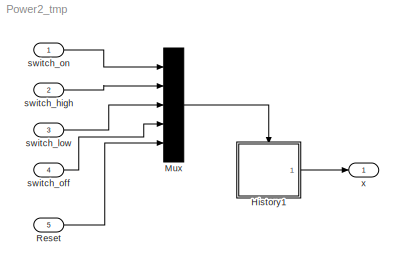
MODEL Power2_tmp
KIND model
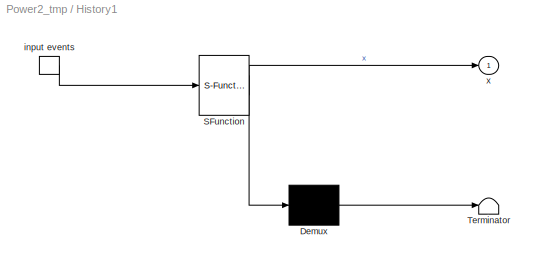
BLOCK [SubSystem] History1
  ErrorFcn = Stateflow.Translate.translate
  PermitHierarchicalResolution = ParametersOnly
  Ports = [0, 1, 0, 1]
  RequestExecContextInheritance = off
  SFBlockType = Chart
  SID = 1
  TreatAsAtomicUnit = on
  Variant = off
BLOCK [Demux] History1/ Demux 
  Outputs = 1
  Ports = [1, 1]
  SID = 1::10
BLOCK [S-Function] History1/ SFunction 
  EnableBusSupport = off
  FunctionName = sf_sfun
  PortCounts = [1 2]
  Ports = [1, 2]
  SFunctionDeploymentMode = off
  SID = 1::9
  Tag = Stateflow S-Function Power2_tmp 1
BLOCK [Terminator] History1/ Terminator 
  SID = 1::11
BLOCK [TriggerPort] History1/input events
  Ports = [0, 1]
  SID = 1::1
  ShowOutputPort = on
  TriggerType = either
BLOCK [Outport] History1/x
  IconDisplay = Port number
  SID = 1::5
BLOCK [Mux] Mux
  DisplayOption = bar
  Inputs = 5
  Ports = [5, 1]
  SID = 4
BLOCK [Inport] Reset
  IconDisplay = Port number
  Port = 5
  SID = 8
BLOCK [Inport] switch_high
  IconDisplay = Port number
  Port = 2
  SID = 6
BLOCK [Inport] switch_low
  IconDisplay = Port number
  Port = 3
  SID = 7
BLOCK [Inport] switch_off
  IconDisplay = Port number
  Port = 4
  SID = 3
BLOCK [Inport] switch_on
  IconDisplay = Port number
  SID = 2
BLOCK [Outport] x
  IconDisplay = Port number
  SID = 5
LINE History1/ Demux :1 -> History1/ Terminator :1
LINE History1/ SFunction :1 -> History1/ Demux :1
LINE History1/ SFunction :2 -> History1/x:1
LINE History1/input events:1 -> History1/ SFunction :1
LINE History1:1 -> x:1
LINE Mux:1 -> History1:trigger
LINE Reset:1 -> Mux:5
LINE switch_high:1 -> Mux:2
LINE switch_low:1 -> Mux:3
LINE switch_off:1 -> Mux:4
LINE switch_on:1 -> Mux:1
CHART History1 states=4 transitions=7
  STATE_LABEL 'Power_off\\nen: x=0;'
  STATE_LABEL 'Low/\\nen: x=1;\\n'
  STATE_LABEL 'High/\\nen: x=2;'
  STATE_LABEL 'Power_on'
